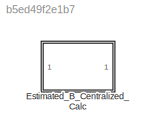
MODEL slx_b5ed49f2e1b7
KIND library
CONFIG AbsTol = auto
CONFIG EnableMultiTasking = off
CONFIG FixedStep = auto
CONFIG MaxStep = auto
CONFIG MinStep = auto
CONFIG RelTol = 1e-3
CONFIG SampleTimeConstraint = Unconstrained
CONFIG SolverName = VariableStepAuto
CONFIG StartTime = 0.0
CONFIG StopTime = 10.0
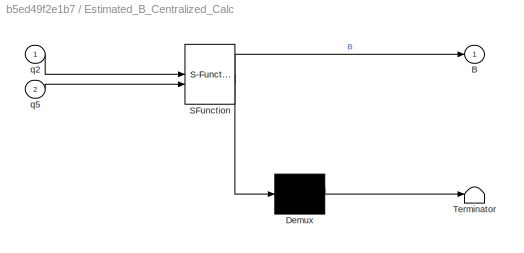
BLOCK [SubSystem] Estimated_B_Centralized_Calc
  ErrorFcn = Stateflow.Translate.translate
  LibrarySourceBlock = simulink/User-Defined\nFunctions/MATLAB Function
  PermitHierarchicalResolution = ExplicitOnly
  SFBlockType = MATLAB Function
  TreatAsAtomicUnit = on
BLOCK [Demux] Estimated_B_Centralized_Calc/ Demux 
  Outputs = 1
BLOCK [S-Function] Estimated_B_Centralized_Calc/ SFunction 
  EnableBusSupport = off
  FunctionName = sf_sfun
  PortCounts = [2 2]
  SFcnIsStateOwnerBlock = off
  SFunctionDeploymentMode = off
  Tag = Stateflow S-Function 2
BLOCK [Terminator] Estimated_B_Centralized_Calc/ Terminator 
BLOCK [Outport] Estimated_B_Centralized_Calc/B
BLOCK [Inport] Estimated_B_Centralized_Calc/q2
BLOCK [Inport] Estimated_B_Centralized_Calc/q5
  Port = 2
CHART Estimated_B_Centralized_Calc states=1 transitions=1
  STATE_LABEL 'eML_blk_kernel()'
  STATE_LABEL 'SCRIPT:\nfunction B = Estimated_B_Centralized_Calc(q2,q5)\n%#codegen\n\n%    This function was generated by the Symbolic Math Toolbox version 9.3.\n%    14-Jun-2023 23:21:33\n\n% q2 = complex(q2);  % if required to enforce complex operations\n% q5 = complex(q5);  % if required to enforce complex operations\nt2 = q2.*2.0;\nt3 = q5.^2;\nt4 = pi./9.0;\nt5 = pi.*(2.0./9.0);\nt6 = pi.*(2.0./1.5e+1);\nt7 = pi.*(4.0./...<+1681ch>'
CHART  states=0 transitions=0
